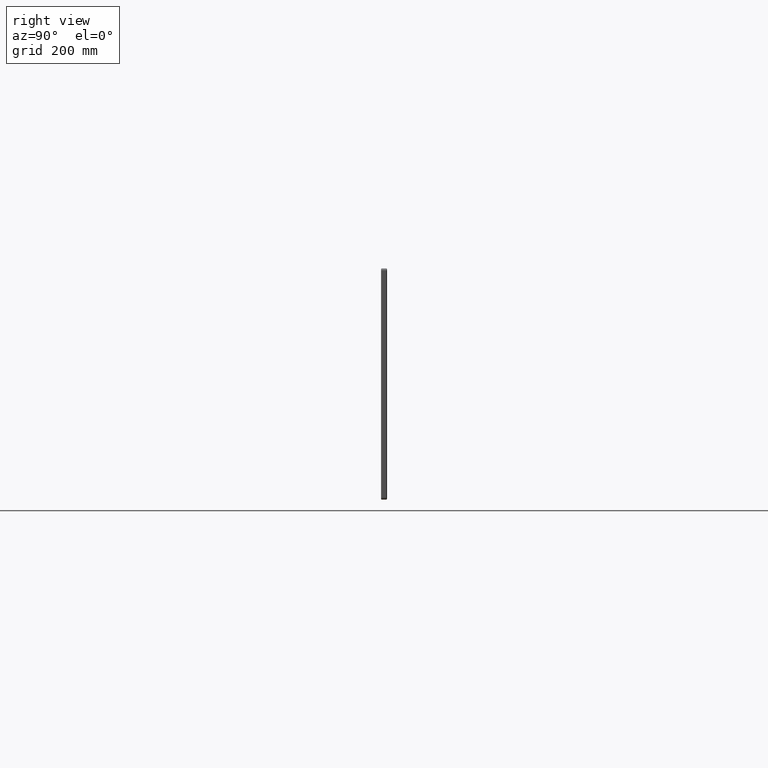
[diagram: clean part render]
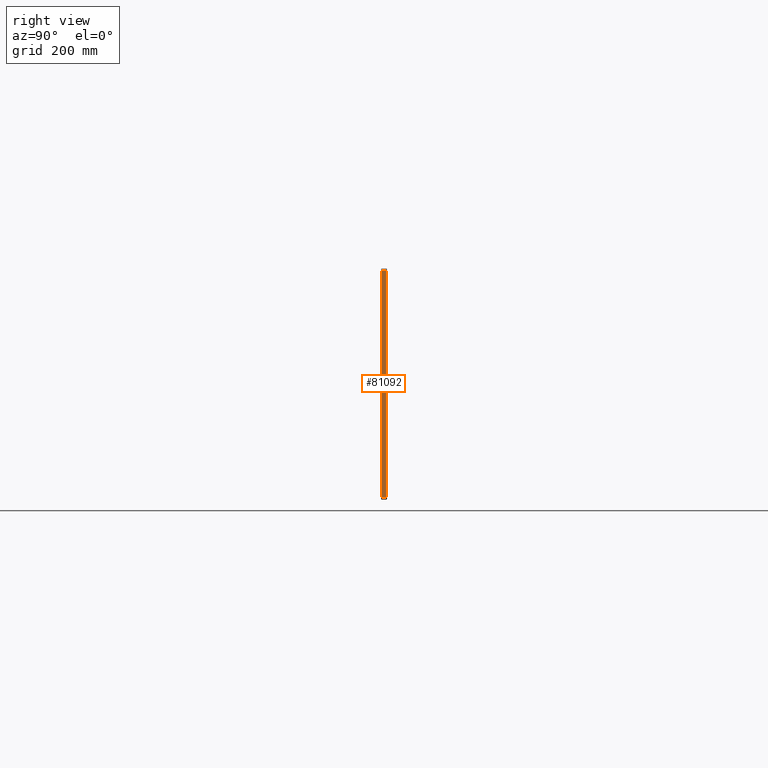
[diagram: same view with one face highlighted and labeled with its STEP entity id]
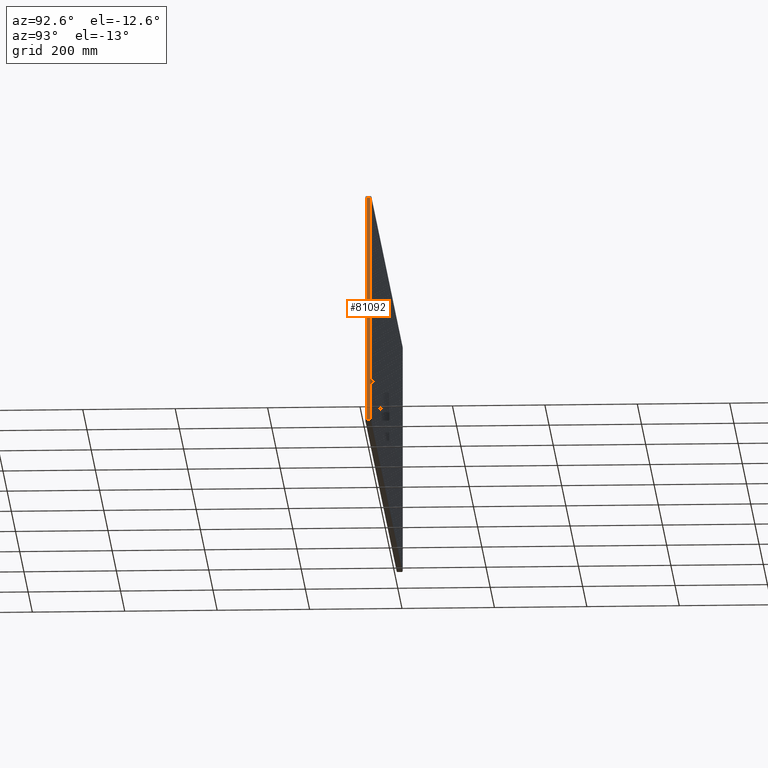
[diagram: same view with one face highlighted and labeled with its STEP entity id]
A machine part, right view. The second image highlights one B-rep face of the part: STEP entity #81092.
A second angle (auxiliary view) of the same face is appended — the face is thin or edge-on in the first view.
In plain terms, the highlighted planar face has unit normal (-1, 0, 0).
Its self-contained STEP definition (entity closure, byte-faithful):
#3169 = LINE ( 'NONE', #32780, #35834 ) ;
#6450 = VERTEX_POINT ( 'NONE', #22987 ) ;
#6870 = ORIENTED_EDGE ( 'NONE', *, *, #13086, .T. ) ;
#7153 = CARTESIAN_POINT ( 'NONE',  ( 750.0000000000000000, 13.00000000000000000, -245.0000000000000000 ) ) ;
#8345 = VECTOR ( 'NONE', #35373, 1000.000000000000000 ) ;
#10574 = EDGE_LOOP ( 'NONE', ( #6870, #72014, #61133, #78680 ) ) ;
#10782 = VERTEX_POINT ( 'NONE', #56372 ) ;
#13086 = EDGE_CURVE ( 'NONE', #33893, #15557, #15979, .T. ) ;
#13494 = CARTESIAN_POINT ( 'NONE',  ( 750.0000000000001100, 11.00000000000000000, 245.0000000000000000 ) ) ;
#15557 = VERTEX_POINT ( 'NONE', #45390 ) ;
#15979 = LINE ( 'NONE', #28376, #78320 ) ;
#17423 = LINE ( 'NONE', #67022, #8345 ) ;
#22987 = CARTESIAN_POINT ( 'NONE',  ( 750.0000000000000000, 2.000000000000003600, -245.0000000000000000 ) ) ;
#27709 = AXIS2_PLACEMENT_3D ( 'NONE', #7153, #45372, #72437 ) ;
#28376 = CARTESIAN_POINT ( 'NONE',  ( 750.0000000000001100, 13.00000000000000000, 245.0000000000000000 ) ) ;
#32780 = CARTESIAN_POINT ( 'NONE',  ( 750.0000000000000000, 13.00000000000000000, -245.0000000000000000 ) ) ;
#33380 = EDGE_CURVE ( 'NONE', #10782, #33893, #54479, .T. ) ;
#33893 = VERTEX_POINT ( 'NONE', #13494 ) ;
#35373 = DIRECTION ( 'NONE',  ( -2.265761274745218000E-016, 0.0000000000000000000, -1.000000000000000000 ) ) ;
#35834 = VECTOR ( 'NONE', #59032, 1000.000000000000000 ) ;
#39021 = CARTESIAN_POINT ( 'NONE',  ( 750.0000000000001100, 11.00000000000000000, 245.0000000000000000 ) ) ;
#39679 = PLANE ( 'NONE',  #27709 ) ;
#45372 = DIRECTION ( 'NONE',  ( -1.000000000000000000, 0.0000000000000000000, 2.265761274745218000E-016 ) ) ;
#45390 = CARTESIAN_POINT ( 'NONE',  ( 750.0000000000001100, 2.000000000000001800, 245.0000000000000000 ) ) ;
#45858 = EDGE_CURVE ( 'NONE', #10782, #6450, #3169, .T. ) ;
#54479 = LINE ( 'NONE', #39021, #70842 ) ;
#56372 = CARTESIAN_POINT ( 'NONE',  ( 750.0000000000000000, 11.00000000000000000, -245.0000000000000000 ) ) ;
#59032 = DIRECTION ( 'NONE',  ( -0.0000000000000000000, -1.000000000000000000, -0.0000000000000000000 ) ) ;
#61133 = ORIENTED_EDGE ( 'NONE', *, *, #45858, .F. ) ;
#67022 = CARTESIAN_POINT ( 'NONE',  ( 750.0000000000000000, 2.000000000000000000, -245.0000000000000000 ) ) ;
#70842 = VECTOR ( 'NONE', #83490, 1000.000000000000000 ) ;
#72014 = ORIENTED_EDGE ( 'NONE', *, *, #74733, .T. ) ;
#72437 = DIRECTION ( 'NONE',  ( 2.265761274745218000E-016, 0.0000000000000000000, 1.000000000000000000 ) ) ;
#73994 = DIRECTION ( 'NONE',  ( -0.0000000000000000000, -1.000000000000000000, -0.0000000000000000000 ) ) ;
#74733 = EDGE_CURVE ( 'NONE', #15557, #6450, #17423, .T. ) ;
#78320 = VECTOR ( 'NONE', #73994, 1000.000000000000000 ) ;
#78680 = ORIENTED_EDGE ( 'NONE', *, *, #33380, .T. ) ;
#81092 = ADVANCED_FACE ( 'NONE', ( #81637 ), #39679, .F. ) ;
#81637 = FACE_OUTER_BOUND ( 'NONE', #10574, .T. ) ;
#83490 = DIRECTION ( 'NONE',  ( 2.265761274745218000E-016, -0.0000000000000000000, 1.000000000000000000 ) ) ;